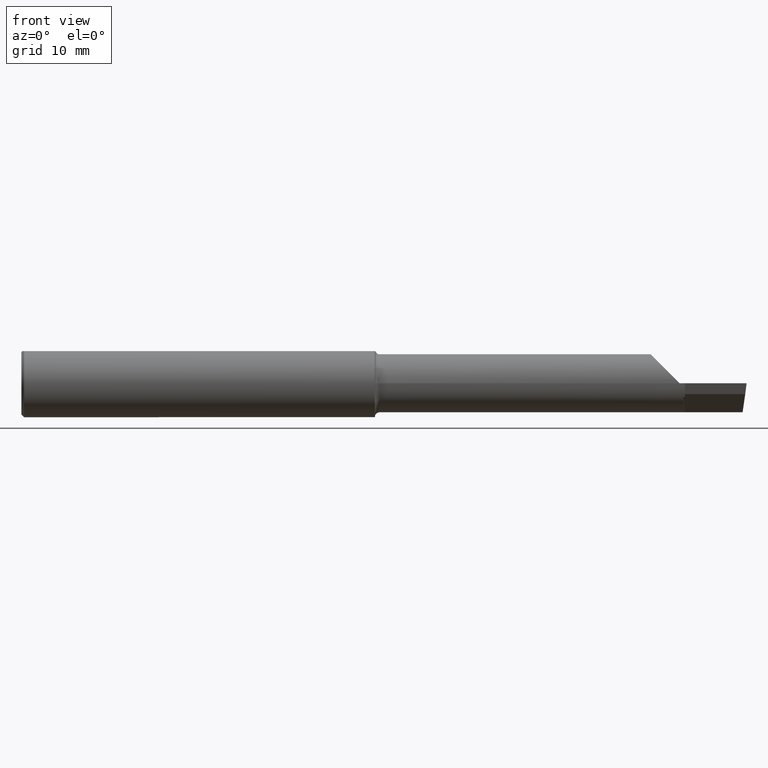
[diagram: clean part render]
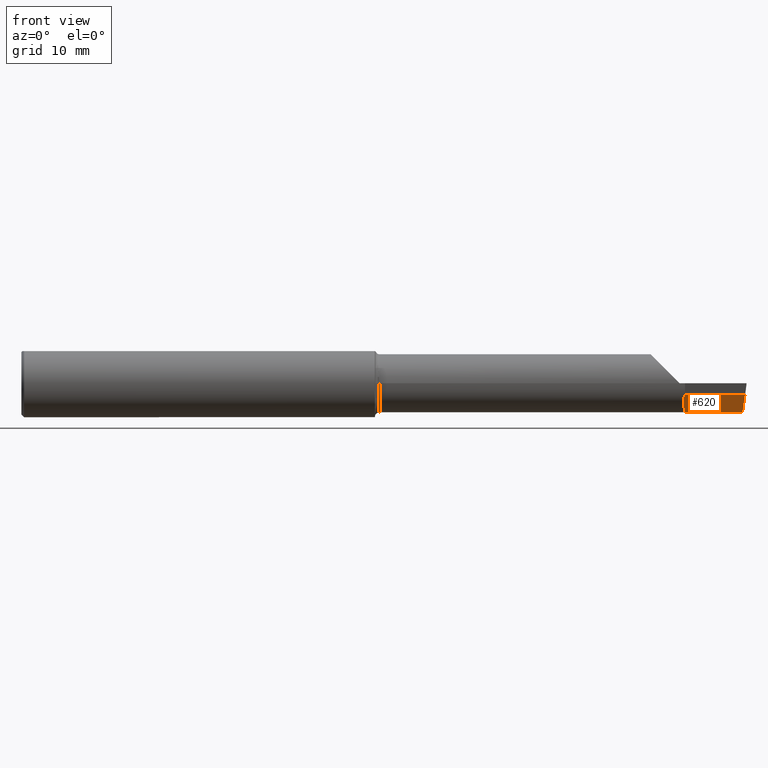
[diagram: same view with one face highlighted and labeled with its STEP entity id]
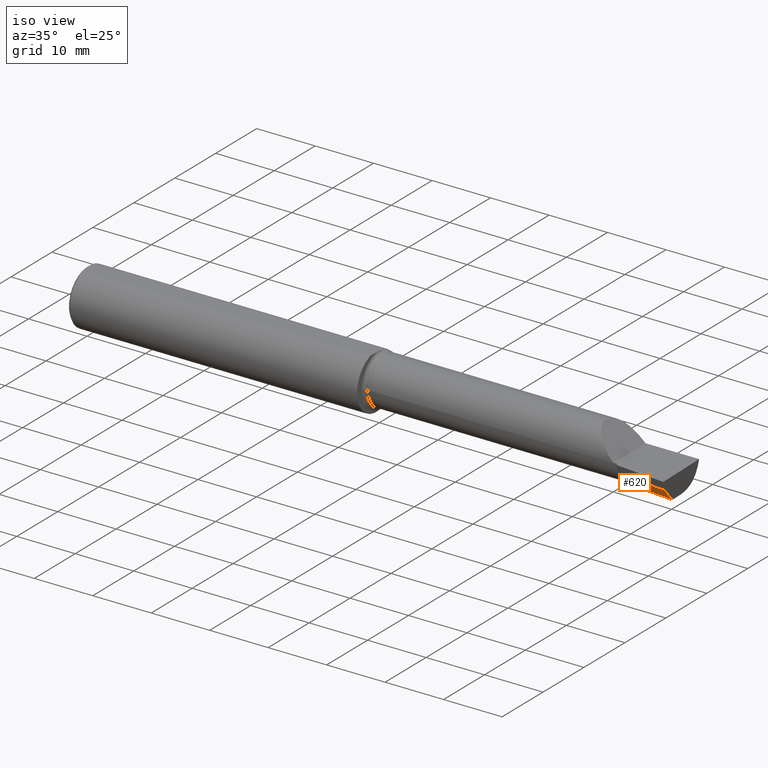
[diagram: same view with one face highlighted and labeled with its STEP entity id]
A machine part, front view. The second image highlights one B-rep face of the part: STEP entity #620.
A second angle (iso view) of the same face is appended — the face is thin or edge-on in the first view.
In plain terms, the highlighted planar face has unit normal (0.0684, 0.71, 0.7009).
Its self-contained STEP definition (entity closure, byte-faithful):
#29 = CARTESIAN_POINT ( 'NONE',  ( 3.659999999999999698, -0.1038634330788594656, -0.07523725788978889717 ) ) ;
#36 = CARTESIAN_POINT ( 'NONE',  ( 3.658696733852337513, -0.03937063256198262279, -0.1404363566730252033 ) ) ;
#39 = ORIENTED_EDGE ( 'NONE', *, *, #356, .F. ) ;
#41 = EDGE_CURVE ( 'NONE', #164, #310, #149, .T. ) ;
#51 = VECTOR ( 'NONE', #399, 39.37007874015748143 ) ;
#52 = DIRECTION ( 'NONE',  ( -2.998855530929885675E-18, -0.7025528302622682242, 0.7116315905652844664 ) ) ;
#57 = DIRECTION ( 'NONE',  ( -0.06717917588521687966, -0.6976824170844040385, 0.7132504491541848957 ) ) ;
#69 = VECTOR ( 'NONE', #169, 39.37007874015748143 ) ;
#71 = ORIENTED_EDGE ( 'NONE', *, *, #267, .F. ) ;
#77 = CARTESIAN_POINT ( 'NONE',  ( 3.656051771408124651, -0.03882109269545381408, -0.1407350259470294407 ) ) ;
#81 = DIRECTION ( 'NONE',  ( 0.06836202603457079696, 0.7099667855717585185, 0.7009092642998474565 ) ) ;
#107 = CARTESIAN_POINT ( 'NONE',  ( 3.977837650838079941, -0.05073698874247323243, -0.1600499999999999701 ) ) ;
#126 = VERTEX_POINT ( 'NONE', #663 ) ;
#134 = ORIENTED_EDGE ( 'NONE', *, *, #41, .F. ) ;
#144 = ORIENTED_EDGE ( 'NONE', *, *, #171, .F. ) ;
#149 = LINE ( 'NONE', #698, #281 ) ;
#164 = VERTEX_POINT ( 'NONE', #456 ) ;
#169 = DIRECTION ( 'NONE',  ( -2.998855530929885675E-18, -0.7025528302622682242, 0.7116315905652844664 ) ) ;
#171 = EDGE_CURVE ( 'NONE', #599, #340, #508, .T. ) ;
#190 = CARTESIAN_POINT ( 'NONE',  ( 3.659999999999999698, -0.1189062990755807570, -0.06000000000000013656 ) ) ;
#218 = LINE ( 'NONE', #345, #69 ) ;
#225 = CARTESIAN_POINT ( 'NONE',  ( 3.992367153641839028, -0.1509096159518786284, -0.06000000000000012962 ) ) ;
#228 =( BOUNDED_CURVE ( )  B_SPLINE_CURVE ( 3, ( #354, #240, #526, #29 ),
 .UNSPECIFIED., .F., .T. ) 
 B_SPLINE_CURVE_WITH_KNOTS ( ( 4, 4 ),
 ( 2.836913096765500963, 2.852002354478645252 ),
 .UNSPECIFIED. ) 
 CURVE ( )  GEOMETRIC_REPRESENTATION_ITEM ( )  RATIONAL_B_SPLINE_CURVE ( ( 1.000000000000000000, 0.9999810262818066287, 0.9999810262818066287, 1.000000000000000000 ) ) 
 REPRESENTATION_ITEM ( '' )  );
#230 = CARTESIAN_POINT ( 'NONE',  ( 3.648447552560979190, -0.1177939249073253897, -0.06000000000000012962 ) ) ;
#235 = EDGE_CURVE ( 'NONE', #466, #241, #619, .T. ) ;
#240 = CARTESIAN_POINT ( 'NONE',  ( 3.653205481862503934, -0.1046149184608682614, -0.07381336932430714037 ) ) ;
#241 = VERTEX_POINT ( 'NONE', #107 ) ;
#249 = DIRECTION ( 'NONE',  ( 0.9953961983671787417, -0.09584575252022423109, -0.000000000000000000 ) ) ;
#267 = EDGE_CURVE ( 'NONE', #340, #164, #228, .T. ) ;
#274 = EDGE_LOOP ( 'NONE', ( #574, #39, #134, #71, #144, #343, #623, #425 ) ) ;
#281 = VECTOR ( 'NONE', #52, 39.37007874015748143 ) ;
#290 = CARTESIAN_POINT ( 'NONE',  ( 3.656051771408124651, -0.03882109269545381408, -0.1407350259470294407 ) ) ;
#292 = VERTEX_POINT ( 'NONE', #469 ) ;
#299 = DIRECTION ( 'NONE',  ( 0.000000000000000000, -0.7025528302622682242, 0.7116315905652844664 ) ) ;
#300 = CARTESIAN_POINT ( 'NONE',  ( 3.649681144494221208, -0.1049825828457492949, -0.07309721336804403391 ) ) ;
#310 = VERTEX_POINT ( 'NONE', #190 ) ;
#325 = EDGE_CURVE ( 'NONE', #292, #599, #414, .T. ) ;
#340 = VERTEX_POINT ( 'NONE', #300 ) ;
#343 = ORIENTED_EDGE ( 'NONE', *, *, #325, .F. ) ;
#344 = AXIS2_PLACEMENT_3D ( 'NONE', #576, #81, #299 ) ;
#345 = CARTESIAN_POINT ( 'NONE',  ( 3.659999999999999698, -0.1632203377045967629, -0.01511331185988433988 ) ) ;
#347 = CARTESIAN_POINT ( 'NONE',  ( 3.648447552560979190, -0.1177939249073253897, -0.06000000000000012962 ) ) ;
#353 = FACE_OUTER_BOUND ( 'NONE', #274, .T. ) ;
#354 = CARTESIAN_POINT ( 'NONE',  ( 3.649681144494221208, -0.1049825828457492949, -0.07309721336804403391 ) ) ;
#356 = EDGE_CURVE ( 'NONE', #310, #466, #578, .T. ) ;
#399 = DIRECTION ( 'NONE',  ( -0.9953961983671787417, 0.09584575252022421721, -8.676204698782344932E-18 ) ) ;
#407 = EDGE_CURVE ( 'NONE', #241, #126, #503, .T. ) ;
#414 =( BOUNDED_CURVE ( )  B_SPLINE_CURVE ( 3, ( #418, #36, #465, #290 ),
 .UNSPECIFIED., .F., .F. ) 
 B_SPLINE_CURVE_WITH_KNOTS ( ( 4, 4 ),
 ( 3.431182952700939204, 3.437044785209013131 ),
 .UNSPECIFIED. ) 
 CURVE ( )  GEOMETRIC_REPRESENTATION_ITEM ( )  RATIONAL_B_SPLINE_CURVE ( ( 1.000000000000000000, 0.9999971365786870514, 0.9999971365786870514, 1.000000000000000000 ) ) 
 REPRESENTATION_ITEM ( '' )  );
#418 = CARTESIAN_POINT ( 'NONE',  ( 3.659999999999999698, -0.03964474360533823405, -0.1402858153299459121 ) ) ;
#425 = ORIENTED_EDGE ( 'NONE', *, *, #407, .F. ) ;
#444 = EDGE_CURVE ( 'NONE', #126, #292, #218, .T. ) ;
#445 = DIRECTION ( 'NONE',  ( -0.1020886612874987581, 0.7038430390621321919, -0.7029814233678639557 ) ) ;
#456 = CARTESIAN_POINT ( 'NONE',  ( 3.659999999999999698, -0.1038634330788594656, -0.07523725788978889717 ) ) ;
#459 = VECTOR ( 'NONE', #249, 39.37007874015748143 ) ;
#465 = CARTESIAN_POINT ( 'NONE',  ( 3.657380653886553645, -0.03909608147253235827, -0.1405860939741473414 ) ) ;
#466 = VERTEX_POINT ( 'NONE', #225 ) ;
#469 = CARTESIAN_POINT ( 'NONE',  ( 3.659999999999999698, -0.03964474360533823405, -0.1402858153299459121 ) ) ;
#500 = CARTESIAN_POINT ( 'NONE',  ( 3.986403283069230863, -0.1097921330163685871, -0.1010671486043597800 ) ) ;
#503 = LINE ( 'NONE', #665, #51 ) ;
#508 = LINE ( 'NONE', #230, #649 ) ;
#526 = CARTESIAN_POINT ( 'NONE',  ( 3.656645165628020333, -0.1042418614602932669, -0.07452673103334613025 ) ) ;
#574 = ORIENTED_EDGE ( 'NONE', *, *, #235, .F. ) ;
#576 = CARTESIAN_POINT ( 'NONE',  ( 3.648447552560979190, -0.1177939249073253897, -0.06000000000000012962 ) ) ;
#578 = LINE ( 'NONE', #347, #459 ) ;
#581 = PLANE ( 'NONE',  #344 ) ;
#591 = VECTOR ( 'NONE', #445, 39.37007874015748854 ) ;
#599 = VERTEX_POINT ( 'NONE', #77 ) ;
#619 = LINE ( 'NONE', #500, #591 ) ;
#620 = ADVANCED_FACE ( 'NONE', ( #353 ), #581, .F. ) ;
#623 = ORIENTED_EDGE ( 'NONE', *, *, #444, .F. ) ;
#649 = VECTOR ( 'NONE', #57, 39.37007874015748854 ) ;
#663 = CARTESIAN_POINT ( 'NONE',  ( 3.659999999999999698, -0.02013270386193287756, -0.1600499999999999701 ) ) ;
#665 = CARTESIAN_POINT ( 'NONE',  ( 3.991387742473506695, -0.05204171416903798086, -0.1600499999999999701 ) ) ;
#698 = CARTESIAN_POINT ( 'NONE',  ( 3.659999999999999698, -0.1632203377045967629, -0.01511331185988433988 ) ) ;